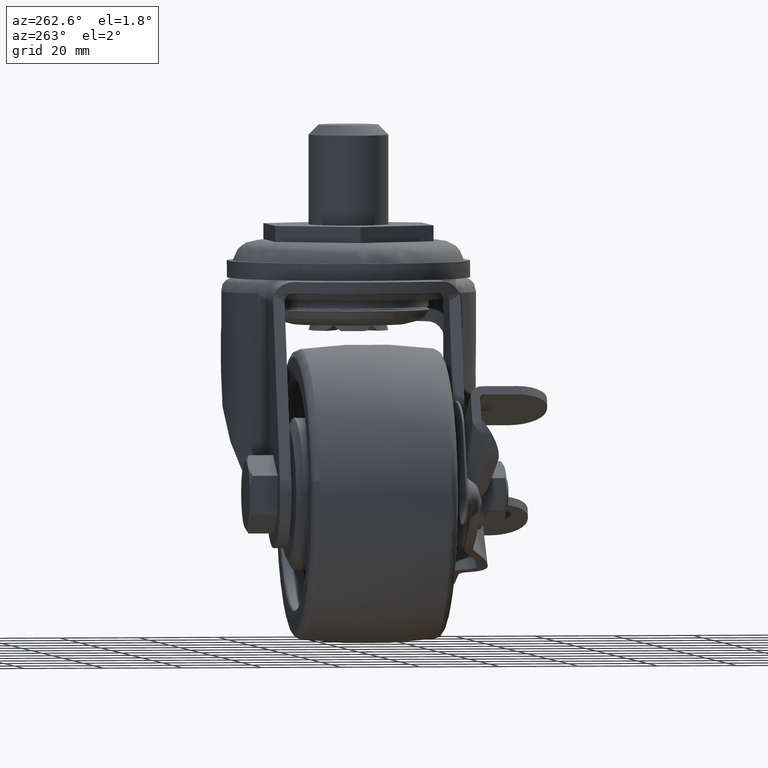
[diagram: clean part render]
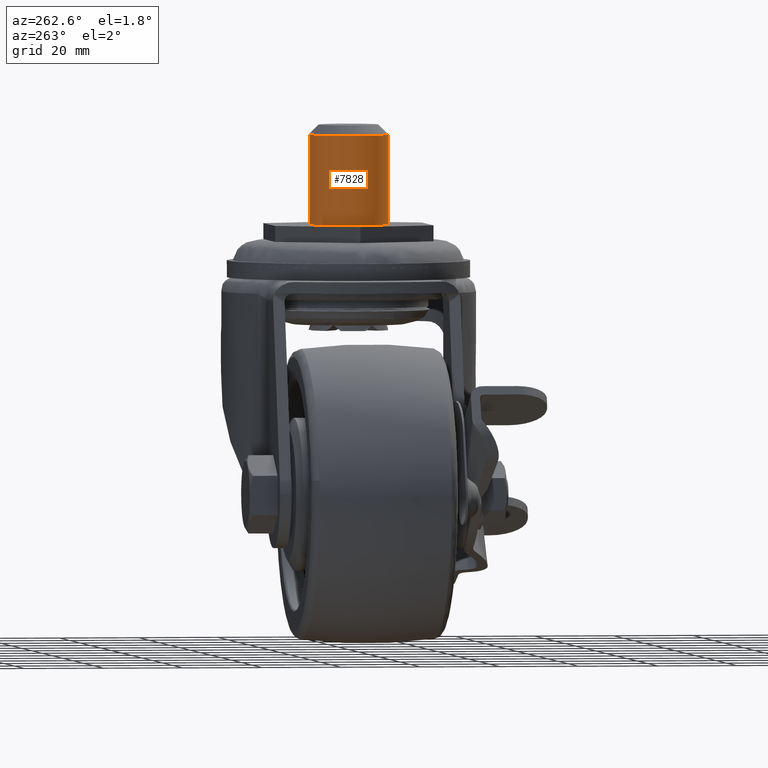
[diagram: same view with one face highlighted and labeled with its STEP entity id]
A machine part, auxiliary view. The second image highlights one B-rep face of the part: STEP entity #7828.
In plain terms, the highlighted face is a freeform B-spline surface patch.
Its self-contained STEP definition (entity closure, byte-faithful):
#7658=CARTESIAN_POINT('',(-0.610485395531720,9.981347984231702,26.499993999951521));
#7659=VERTEX_POINT('',#7658);
#7684=CARTESIAN_POINT('',(0.610485395531720,-9.981347984231702,26.499993999951521));
#7685=VERTEX_POINT('',#7684);
#7725=CARTESIAN_POINT('',(-10.0,0.0,26.499993999999901));
#7726=VERTEX_POINT('',#7725);
#7727=CARTESIAN_POINT('',(-10.0,0.0,26.499993999999901));
#7728=CARTESIAN_POINT('',(-9.999999999909901,9.407060668731493,26.499993999975718));
#7729=CARTESIAN_POINT('',(-0.610485395531720,9.981347984231702,26.499993999951517));
#7737=(BOUNDED_CURVE()B_SPLINE_CURVE(2,(#7727,#7728,#7729),.UNSPECIFIED.,.F.,.U.)B_SPLINE_CURVE_WITH_KNOTS((3,3),(0.0,0.239332962235687),.UNSPECIFIED.)CURVE()GEOMETRIC_REPRESENTATION_ITEM()RATIONAL_B_SPLINE_CURVE((1.0,0.719603993290525,0.976072041659740))REPRESENTATION_ITEM(''));
#7738=EDGE_CURVE('',#7726,#7659,#7737,.T.);
#7740=CARTESIAN_POINT('',(0.610485395531720,-9.981347984231700,26.499993999951521));
#7741=CARTESIAN_POINT('',(0.305527632990464,-10.000000000034751,26.499993999952210));
#7742=CARTESIAN_POINT('',(-1.748558E-010,-10.000000000034211,26.499993999952949));
#7743=CARTESIAN_POINT('',(-10.000000000084755,-10.000000000016582,26.499993999977143));
#7744=CARTESIAN_POINT('',(-10.0,0.0,26.499993999999901));
#7752=(BOUNDED_CURVE()B_SPLINE_CURVE(2,(#7740,#7741,#7742,#7743,#7744),.UNSPECIFIED.,.F.,.U.)B_SPLINE_CURVE_WITH_KNOTS((3,2,3),(0.739332962235687,0.750000000000000,1.0),.UNSPECIFIED.)CURVE()GEOMETRIC_REPRESENTATION_ITEM()RATIONAL_B_SPLINE_CURVE((0.976072041659740,0.987502787896023,1.0,0.707106781186548,1.0))REPRESENTATION_ITEM(''));
#7753=EDGE_CURVE('',#7685,#7726,#7752,.T.);
#7762=CARTESIAN_POINT('',(0.610485395348570,-9.981347984218667,27.062493849999900));
#7763=CARTESIAN_POINT('',(-9.370862588870097,-10.591833379567237,27.062493849999903));
#7764=CARTESIAN_POINT('',(-9.981347984218667,-0.610485395348570,27.062493849999900));
#7765=CARTESIAN_POINT('',(-10.591833379567237,9.370862588870097,27.062493849999903));
#7766=CARTESIAN_POINT('',(-0.610485395348570,9.981347984218667,27.062493849999900));
#7767=CARTESIAN_POINT('',(0.610485395348570,-9.981347984218667,3.423437653750000));
#7768=CARTESIAN_POINT('',(-9.370862588870097,-10.591833379567237,3.423437653750000));
#7769=CARTESIAN_POINT('',(-9.981347984218667,-0.610485395348570,3.423437653750000));
#7770=CARTESIAN_POINT('',(-10.591833379567237,9.370862588870097,3.423437653750000));
#7771=CARTESIAN_POINT('',(-0.610485395348570,9.981347984218667,3.423437653750000));
#7779=(BOUNDED_SURFACE()B_SPLINE_SURFACE(2,1,((#7762,#7767),(#7763,#7768),(#7764,#7769),(#7765,#7770),(#7766,#7771)),.UNSPECIFIED.,.F.,.F.,.U.)B_SPLINE_SURFACE_WITH_KNOTS((3,2,3),(2,2),(0.0,16.568542494923800,33.137084989847587),(0.0,23.639056196249911),.UNSPECIFIED.)GEOMETRIC_REPRESENTATION_ITEM()RATIONAL_B_SPLINE_SURFACE(((1.0,1.0),(0.707106781186548,0.707106781186548),(1.0,1.0),(0.707106781186548,0.707106781186548),(1.0,1.0)))REPRESENTATION_ITEM('')SURFACE());
#7780=CARTESIAN_POINT('',(0.610485395457445,-9.981347984212009,4.0));
#7781=VERTEX_POINT('',#7780);
#7782=CARTESIAN_POINT('',(0.610485395531720,-9.981347984231702,26.499993999951521));
#7783=CARTESIAN_POINT('',(0.610485395457445,-9.981347984212009,4.0));
#7784=QUASI_UNIFORM_CURVE('',1,(#7782,#7783),.UNSPECIFIED.,.F.,.U.);
#7785=EDGE_CURVE('',#7685,#7781,#7784,.T.);
#7786=ORIENTED_EDGE('',*,*,#7785,.F.);
#7787=ORIENTED_EDGE('',*,*,#7753,.T.);
#7788=ORIENTED_EDGE('',*,*,#7738,.T.);
#7789=CARTESIAN_POINT('',(-0.610485395457447,9.981347984212009,4.0));
#7790=VERTEX_POINT('',#7789);
#7791=CARTESIAN_POINT('',(-0.610485395531720,9.981347984231702,26.499993999951521));
#7792=CARTESIAN_POINT('',(-0.610485395457447,9.981347984212009,4.0));
#7793=QUASI_UNIFORM_CURVE('',1,(#7791,#7792),.UNSPECIFIED.,.F.,.U.);
#7794=EDGE_CURVE('',#7659,#7790,#7793,.T.);
#7795=ORIENTED_EDGE('',*,*,#7794,.T.);
#7796=CARTESIAN_POINT('',(-10.0,0.0,4.0));
#7797=VERTEX_POINT('',#7796);
#7798=CARTESIAN_POINT('',(-10.0,0.0,4.0));
#7799=CARTESIAN_POINT('',(-10.0,9.407060668954145,4.000000000000000));
#7800=CARTESIAN_POINT('',(-0.610485395457446,9.981347984212011,4.0));
#7808=(BOUNDED_CURVE()B_SPLINE_CURVE(2,(#7798,#7799,#7800),.UNSPECIFIED.,.F.,.U.)B_SPLINE_CURVE_WITH_KNOTS((3,3),(0.500000000000000,0.739332962240086),.UNSPECIFIED.)CURVE()GEOMETRIC_REPRESENTATION_ITEM()RATIONAL_B_SPLINE_CURVE((1.0,0.719603993285371,0.976072041669168))REPRESENTATION_ITEM(''));
#7809=EDGE_CURVE('',#7797,#7790,#7808,.T.);
#7810=ORIENTED_EDGE('',*,*,#7809,.F.);
#7811=CARTESIAN_POINT('',(0.610485395457444,-9.981347984212011,4.000000000000000));
#7812=CARTESIAN_POINT('',(0.305527633040479,-10.000000000000002,4.000000000000000));
#7813=CARTESIAN_POINT('',(0.0,-10.0,4.0));
#7814=CARTESIAN_POINT('',(-10.000000000000002,-10.000000000000002,4.000000000000000));
#7815=CARTESIAN_POINT('',(-10.0,0.0,4.0));
#7823=(BOUNDED_CURVE()B_SPLINE_CURVE(2,(#7811,#7812,#7813,#7814,#7815),.UNSPECIFIED.,.F.,.U.)B_SPLINE_CURVE_WITH_KNOTS((3,2,3),(0.239332962240086,0.250000000000000,0.500000000000000),.UNSPECIFIED.)CURVE()GEOMETRIC_REPRESENTATION_ITEM()RATIONAL_B_SPLINE_CURVE((0.976072041669168,0.987502787901177,1.0,0.707106781186548,1.0))REPRESENTATION_ITEM(''));
#7824=EDGE_CURVE('',#7781,#7797,#7823,.T.);
#7825=ORIENTED_EDGE('',*,*,#7824,.F.);
#7826=EDGE_LOOP('',(#7786,#7787,#7788,#7795,#7810,#7825));
#7827=FACE_OUTER_BOUND('',#7826,.T.);
#7828=ADVANCED_FACE('',(#7827),#7779,.T.);